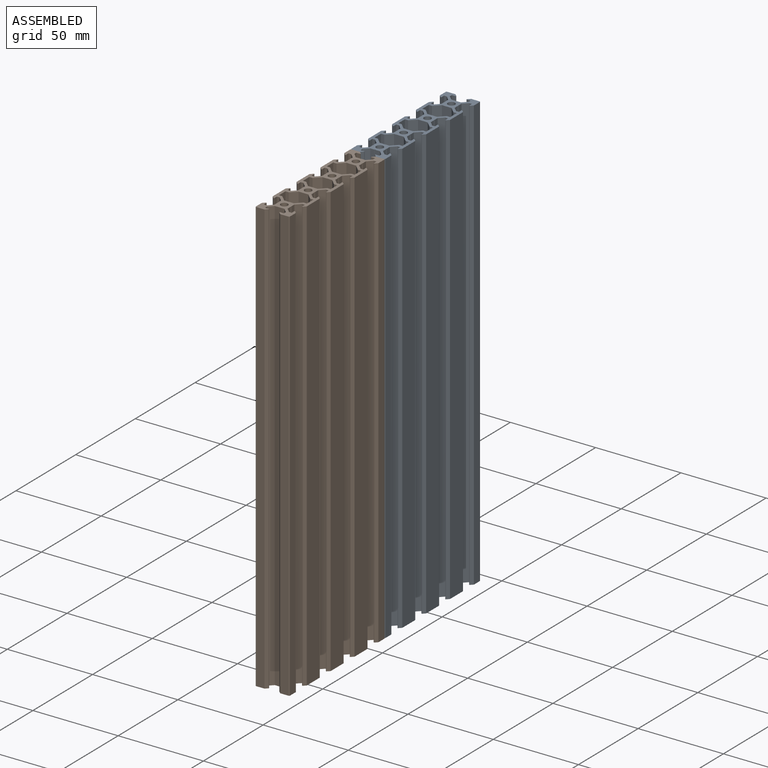
[diagram: assembled view]
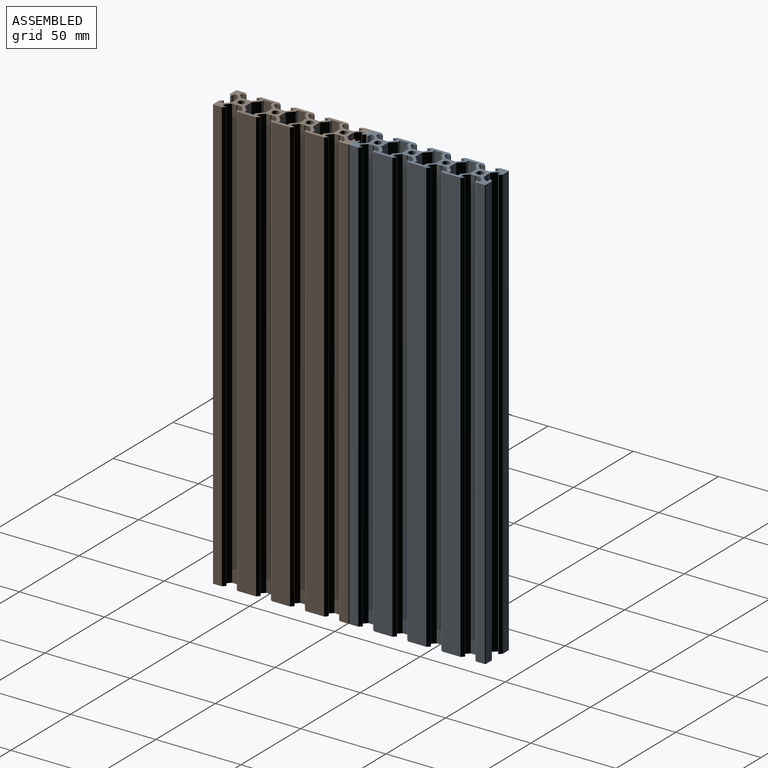
[diagram: assembled view, second angle]
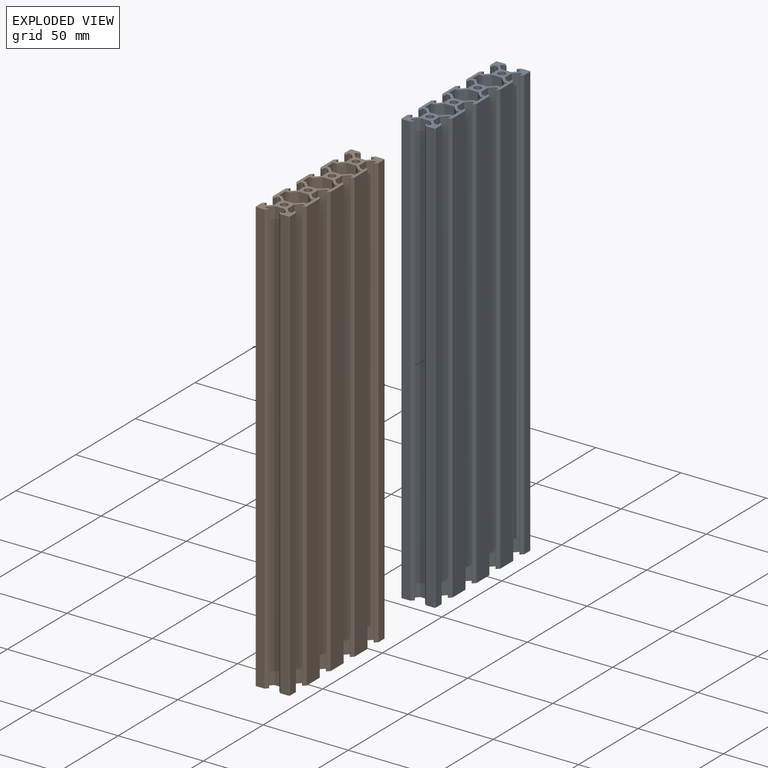
[diagram: exploded view]
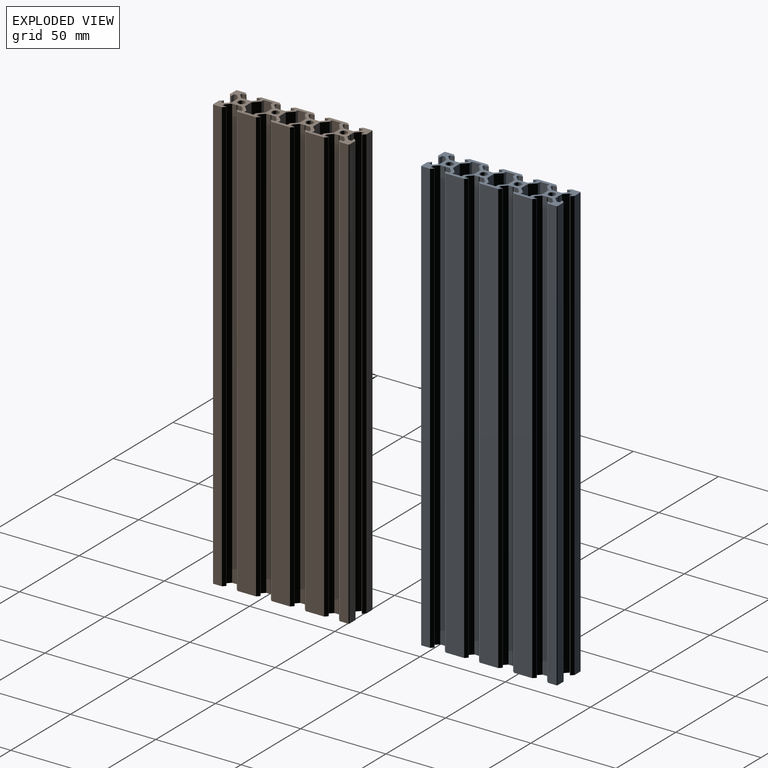
[diagram: exploded view, second angle]
ASSEMBLY  parts=2 mates=3
PART A: 200 faces, bbox 20x80x254 mm
  f0: cylinder r=2.1mm len=254mm, axis (0,0,-1), area 3351.5mm2, adj f198,f199
  f1: cylinder r=2.1mm len=254mm, axis (0,0,-1), area 3351.5mm2, adj f198,f199
  f2: cylinder r=2.1mm len=254mm, axis (0,0,-1), area 3351.5mm2, adj f198,f199
  f3: cylinder r=2.1mm len=254mm, axis (0,0,-1), area 3351.5mm2, adj f198,f199
  f4: plane 254x0.21mm, normal (0.71,0.71,0), area 75.4mm2, adj f5,f194,f198,f199
  f5: plane 254x0.21mm, normal (0.71,-0.71,0), area 75.4mm2, adj f4,f6,f198,f199
  f6: plane 254x2.63mm, normal (1,0,0), area 667.9mm2, adj f5,f7,f198,f199
  f7: plane 254x2.66mm, normal (0.71,-0.71,0), area 955.7mm2, adj f6,f8,f198,f199
  f8: plane 254x1.64mm, normal (0,-1,0), area 416.4mm2, adj f7,f9,f198,f199
  f9: plane 254x2.38mm, normal (-1,0,0), area 603.3mm2, adj f8,f10,f198,f199
  f10: plane 254x0.35mm, normal (0,-1,0), area 87.6mm2, adj f9,f11,f198,f199
  f11: plane 254x1.46mm, normal (0.71,-0.71,0), area 522.7mm2, adj f10,f12,f198,f199
  f12: plane 254x4.92mm, normal (1,0,0), area 1249.7mm2, adj f11,f13,f198,f199
  f13: cylinder r=0.5mm len=254mm, axis (0,0,-1), area 199.5mm2, adj f12,f14,f198,f199
  f14: plane 254x4.92mm, normal (0,1,0), area 1249.7mm2, adj f13,f15,f198,f199
  f15: plane 254x1.46mm, normal (-0.71,0.71,0), area 522.7mm2, adj f14,f16,f198,f199
  f16: plane 254x0.35mm, normal (-1,0,0), area 87.6mm2, adj f15,f17,f198,f199
  f17: plane 254x2.38mm, normal (0,-1,0), area 603.3mm2, adj f16,f18,f198,f199
  f18: plane 254x1.64mm, normal (-1,0,0), area 416.4mm2, adj f17,f19,f198,f199
  f19: plane 254x2.66mm, normal (-0.71,0.71,0), area 955.7mm2, adj f18,f20,f198,f199
  f20: plane 254x2.63mm, normal (0,1,0), area 667.9mm2, adj f19,f21,f198,f199
  f21: plane 254x0.21mm, normal (-0.71,0.71,0), area 75.4mm2, adj f20,f22,f198,f199
  f22: plane 254x0.21mm, normal (0.71,0.71,0), area 75.4mm2, adj f21,f23,f198,f199
  f23: plane 254x2.63mm, normal (0,1,0), area 667.9mm2, adj f22,f24,f198,f199
  f24: plane 254x2.66mm, normal (0.71,0.71,0), area 955.7mm2, adj f23,f25,f198,f199
  f25: plane 254x1.64mm, normal (1,0,0), area 416.4mm2, adj f24,f26,f198,f199
  f26: plane 254x2.38mm, normal (0,-1,0), area 603.3mm2, adj f25,f27,f198,f199
  f27: plane 254x0.35mm, normal (1,0,0), area 87.6mm2, adj f26,f28,f198,f199
  f28: plane 254x1.46mm, normal (0.71,0.71,0), area 522.7mm2, adj f27,f29,f198,f199
  f29: plane 254x4.92mm, normal (0,1,0), area 1249.7mm2, adj f28,f30,f198,f199
  f30: cylinder r=0.5mm len=254mm, axis (0,0,-1), area 199.5mm2, adj f29,f31,f198,f199
  f31: plane 254x4.92mm, normal (-1,0,0), area 1249.7mm2, adj f30,f32,f198,f199
  f32: plane 254x1.46mm, normal (-0.71,-0.71,0), area 522.7mm2, adj f31,f33,f198,f199
  f33: plane 254x0.35mm, normal (0,-1,0), area 87.6mm2, adj f32,f34,f198,f199
  f34: plane 254x2.38mm, normal (1,0,0), area 603.3mm2, adj f33,f35,f198,f199
  f35: plane 254x1.64mm, normal (0,-1,0), area 416.4mm2, adj f34,f36,f198,f199
  f36: plane 254x2.66mm, normal (-0.71,-0.71,0), area 955.7mm2, adj f35,f37,f198,f199
  f37: plane 254x2.63mm, normal (-1,0,0), area 667.9mm2, adj f36,f38,f198,f199
  f38: plane 254x0.21mm, normal (-0.71,-0.71,0), area 75.4mm2, adj f37,f39,f198,f199
  f39: plane 254x0.21mm, normal (-0.71,0.71,0), area 75.4mm2, adj f38,f40,f198,f199
  f40: plane 254x2.63mm, normal (-1,0,0), area 667.9mm2, adj f39,f41,f198,f199
  f41: plane 254x2.66mm, normal (-0.71,0.71,0), area 955.7mm2, adj f40,f42,f198,f199
  f42: plane 254x1.64mm, normal (0,1,0), area 416.4mm2, adj f41,f43,f198,f199
  f43: plane 254x2.38mm, normal (1,0,0), area 603.3mm2, adj f42,f44,f198,f199
  f44: plane 254x0.35mm, normal (0,1,0), area 87.6mm2, adj f43,f45,f198,f199
  f45: plane 254x1.46mm, normal (-0.71,0.71,0), area 522.7mm2, adj f44,f46,f198,f199
  f46: plane 254x10.84mm, normal (-1,0,0), area 2753.4mm2, adj f45,f47,f198,f199
  f47: plane 254x1.46mm, normal (-0.71,-0.71,0), area 522.7mm2, adj f46,f48,f198,f199
  f48: plane 254x0.35mm, normal (0,-1,0), area 87.6mm2, adj f47,f49,f198,f199
  f49: plane 254x2.38mm, normal (1,0,0), area 603.3mm2, adj f48,f50,f198,f199
  f50: plane 254x1.64mm, normal (0,-1,0), area 416.4mm2, adj f49,f51,f198,f199
  f51: plane 254x2.66mm, normal (-0.71,-0.71,0), area 955.7mm2, adj f50,f52,f198,f199
  f52: plane 254x2.63mm, normal (-1,0,0), area 667.9mm2, adj f51,f53,f198,f199
  f53: plane 254x0.21mm, normal (-0.71,-0.71,0), area 75.4mm2, adj f52,f54,f198,f199
  f54: plane 254x0.21mm, normal (-0.71,0.71,0), area 75.4mm2, adj f53,f55,f198,f199
  f55: plane 254x2.63mm, normal (-1,0,0), area 667.9mm2, adj f54,f56,f198,f199
  f56: plane 254x2.66mm, normal (-0.71,0.71,0), area 955.7mm2, adj f55,f57,f198,f199
  f57: plane 254x1.64mm, normal (0,1,0), area 416.4mm2, adj f56,f58,f198,f199
  f58: plane 254x2.38mm, normal (1,0,0), area 603.3mm2, adj f57,f59,f198,f199
  f59: plane 254x0.35mm, normal (0,1,0), area 87.6mm2, adj f58,f60,f198,f199
  f60: plane 254x1.46mm, normal (-0.71,0.71,0), area 522.7mm2, adj f59,f61,f198,f199
  f61: plane 254x10.84mm, normal (-1,0,0), area 2753.4mm2, adj f60,f62,f198,f199
  f62: plane 254x1.46mm, normal (-0.71,-0.71,0), area 522.7mm2, adj f61,f63,f198,f199
  f63: plane 254x0.35mm, normal (0,-1,0), area 87.6mm2, adj f62,f64,f198,f199
  f64: plane 254x2.38mm, normal (1,0,0), area 603.3mm2, adj f63,f65,f198,f199
  f65: plane 254x1.64mm, normal (0,-1,0), area 416.4mm2, adj f64,f66,f198,f199
  f66: plane 254x2.66mm, normal (-0.71,-0.71,0), area 955.7mm2, adj f65,f67,f198,f199
  f67: plane 254x2.63mm, normal (-1,0,0), area 667.9mm2, adj f66,f68,f198,f199
  f68: plane 254x0.21mm, normal (-0.71,-0.71,0), area 75.4mm2, adj f67,f69,f198,f199
  f69: plane 254x0.21mm, normal (-0.71,0.71,0), area 75.4mm2, adj f68,f70,f198,f199
  f70: plane 254x2.63mm, normal (-1,0,0), area 667.9mm2, adj f69,f71,f198,f199
  f71: plane 254x2.66mm, normal (-0.71,0.71,0), area 955.7mm2, adj f70,f72,f198,f199
  f72: plane 254x1.64mm, normal (0,1,0), area 416.4mm2, adj f71,f73,f198,f199
  f73: plane 254x2.38mm, normal (1,0,0), area 603.3mm2, adj f72,f74,f198,f199
  f74: plane 254x0.35mm, normal (0,1,0), area 87.6mm2, adj f73,f75,f198,f199
  f75: plane 254x1.46mm, normal (-0.71,0.71,0), area 522.7mm2, adj f74,f76,f198,f199
  f76: plane 254x10.84mm, normal (-1,0,0), area 2753.4mm2, adj f75,f77,f198,f199
  f77: plane 254x1.46mm, normal (-0.71,-0.71,0), area 522.7mm2, adj f76,f78,f198,f199
  f78: plane 254x0.35mm, normal (0,-1,0), area 87.6mm2, adj f77,f79,f198,f199
  f79: plane 254x2.38mm, normal (1,0,0), area 603.3mm2, adj f78,f80,f198,f199
  f80: plane 254x1.64mm, normal (0,-1,0), area 416.4mm2, adj f79,f81,f198,f199
  f81: plane 254x2.66mm, normal (-0.71,-0.71,0), area 955.7mm2, adj f80,f82,f198,f199
  f82: plane 254x2.63mm, normal (-1,0,0), area 667.9mm2, adj f81,f83,f198,f199
  f83: plane 254x0.21mm, normal (-0.71,-0.71,0), area 75.4mm2, adj f82,f84,f198,f199
  f84: plane 254x0.21mm, normal (-0.71,0.71,0), area 75.4mm2, adj f83,f85,f198,f199
  f85: plane 254x2.63mm, normal (-1,0,0), area 667.9mm2, adj f84,f86,f198,f199
  f86: plane 254x2.66mm, normal (-0.71,0.71,0), area 955.7mm2, adj f85,f87,f198,f199
  f87: plane 254x1.64mm, normal (0,1,0), area 416.4mm2, adj f86,f88,f198,f199
  f88: plane 254x2.38mm, normal (1,0,0), area 603.3mm2, adj f87,f89,f198,f199
  f89: plane 254x0.35mm, normal (0,1,0), area 87.6mm2, adj f88,f90,f198,f199
  f90: plane 254x1.46mm, normal (-0.71,0.71,0), area 522.7mm2, adj f89,f91,f198,f199
  f91: plane 254x4.92mm, normal (-1,0,0), area 1249.7mm2, adj f90,f92,f198,f199
  f92: cylinder r=0.5mm len=254mm, axis (0,0,-1), area 199.5mm2, adj f91,f93,f198,f199
  f93: plane 254x4.92mm, normal (0,-1,0), area 1249.7mm2, adj f92,f94,f198,f199
  f94: plane 254x1.46mm, normal (0.71,-0.71,0), area 522.7mm2, adj f93,f95,f198,f199
  f95: plane 254x0.35mm, normal (1,0,0), area 87.6mm2, adj f94,f96,f198,f199
  f96: plane 254x2.38mm, normal (0,1,0), area 603.3mm2, adj f95,f97,f198,f199
  f97: plane 254x1.64mm, normal (1,0,0), area 416.4mm2, adj f96,f98,f198,f199
  f98: plane 254x2.66mm, normal (0.71,-0.71,0), area 955.7mm2, adj f97,f99,f198,f199
  f99: plane 254x2.63mm, normal (0,-1,0), area 667.9mm2, adj f98,f100,f198,f199
  f100: plane 254x0.21mm, normal (0.71,-0.71,0), area 75.4mm2, adj f99,f101,f198,f199
  f101: plane 254x0.21mm, normal (-0.71,-0.71,0), area 75.4mm2, adj f100,f102,f198,f199
  f102: plane 254x2.63mm, normal (0,-1,0), area 667.9mm2, adj f101,f103,f198,f199
  f103: plane 254x2.66mm, normal (-0.71,-0.71,0), area 955.7mm2, adj f102,f104,f198,f199
  f104: plane 254x1.64mm, normal (-1,0,0), area 416.4mm2, adj f103,f105,f198,f199
  f105: plane 254x2.38mm, normal (0,1,0), area 603.3mm2, adj f104,f106,f198,f199
  f106: plane 254x0.35mm, normal (-1,0,0), area 87.6mm2, adj f105,f107,f198,f199
  f107: plane 254x1.46mm, normal (-0.71,-0.71,0), area 522.7mm2, adj f106,f108,f198,f199
  f108: plane 254x4.92mm, normal (0,-1,0), area 1249.7mm2, adj f107,f109,f198,f199
  f109: cylinder r=0.5mm len=254mm, axis (0,0,-1), area 199.5mm2, adj f108,f110,f198,f199
  f110: plane 254x4.92mm, normal (1,0,0), area 1249.7mm2, adj f109,f111,f198,f199
  f111: plane 254x1.46mm, normal (0.71,0.71,0), area 522.7mm2, adj f110,f112,f198,f199
  f112: plane 254x0.35mm, normal (0,1,0), area 87.6mm2, adj f111,f113,f198,f199
  f113: plane 254x2.38mm, normal (-1,0,0), area 603.3mm2, adj f112,f114,f198,f199
  f114: plane 254x1.64mm, normal (0,1,0), area 416.4mm2, adj f113,f115,f198,f199
  f115: plane 254x2.66mm, normal (0.71,0.71,0), area 955.7mm2, adj f114,f116,f198,f199
  f116: plane 254x2.63mm, normal (1,0,0), area 667.9mm2, adj f115,f117,f198,f199
  f117: plane 254x0.21mm, normal (0.71,0.71,0), area 75.4mm2, adj f116,f118,f198,f199
  f118: plane 254x0.21mm, normal (0.71,-0.71,0), area 75.4mm2, adj f117,f119,f198,f199
  f119: plane 254x2.63mm, normal (1,0,0), area 667.9mm2, adj f118,f120,f198,f199
  f120: plane 254x2.66mm, normal (0.71,-0.71,0), area 955.7mm2, adj f119,f121,f198,f199
  f121: plane 254x1.64mm, normal (0,-1,0), area 416.4mm2, adj f120,f122,f198,f199
  f122: plane 254x2.38mm, normal (-1,0,0), area 603.3mm2, adj f121,f123,f198,f199
  f123: plane 254x0.35mm, normal (0,-1,0), area 87.6mm2, adj f122,f124,f198,f199
  f124: plane 254x1.46mm, normal (0.71,-0.71,0), area 522.7mm2, adj f123,f125,f198,f199
  f125: plane 254x10.84mm, normal (1,0,0), area 2753.4mm2, adj f124,f126,f198,f199
  f126: plane 254x1.46mm, normal (0.71,0.71,0), area 522.7mm2, adj f125,f127,f198,f199
  f127: plane 254x0.35mm, normal (0,1,0), area 87.6mm2, adj f126,f128,f198,f199
  f128: plane 254x2.38mm, normal (-1,0,0), area 603.3mm2, adj f127,f129,f198,f199
  f129: plane 254x1.64mm, normal (0,1,0), area 416.4mm2, adj f128,f130,f198,f199
  f130: plane 254x2.66mm, normal (0.71,0.71,0), area 955.7mm2, adj f129,f131,f198,f199
  f131: plane 254x2.63mm, normal (1,0,0), area 667.9mm2, adj f130,f132,f198,f199
  f132: plane 254x0.21mm, normal (0.71,0.71,0), area 75.4mm2, adj f131,f133,f198,f199
  f133: plane 254x0.21mm, normal (0.71,-0.71,0), area 75.4mm2, adj f132,f134,f198,f199
  f134: plane 254x2.63mm, normal (1,0,0), area 667.9mm2, adj f133,f135,f198,f199
  f135: plane 254x2.66mm, normal (0.71,-0.71,0), area 955.7mm2, adj f134,f136,f198,f199
  f136: plane 254x1.64mm, normal (0,-1,0), area 416.4mm2, adj f135,f137,f198,f199
  f137: plane 254x2.38mm, normal (-1,0,0), area 603.3mm2, adj f136,f138,f198,f199
  f138: plane 254x0.35mm, normal (0,-1,0), area 87.6mm2, adj f137,f139,f198,f199
  f139: plane 254x1.46mm, normal (0.71,-0.71,0), area 522.7mm2, adj f138,f140,f198,f199
  f140: plane 254x10.84mm, normal (1,0,0), area 2753.4mm2, adj f139,f141,f198,f199
  f141: plane 254x1.46mm, normal (0.71,0.71,0), area 522.7mm2, adj f140,f142,f198,f199
  f142: plane 254x0.35mm, normal (0,1,0), area 87.6mm2, adj f141,f143,f198,f199
  f143: plane 254x2.38mm, normal (-1,0,0), area 603.3mm2, adj f142,f144,f198,f199
  f144: plane 254x1.64mm, normal (0,1,0), area 416.4mm2, adj f143,f145,f198,f199
  f145: plane 254x2.66mm, normal (0.71,0.71,0), area 955.7mm2, adj f144,f146,f198,f199
  f146: plane 254x2.63mm, normal (1,0,0), area 667.9mm2, adj f145,f147,f198,f199
  f147: plane 254x0.21mm, normal (0.71,0.71,0), area 75.4mm2, adj f146,f148,f198,f199
  f148: plane 254x0.21mm, normal (0.71,-0.71,0), area 75.4mm2, adj f147,f149,f198,f199
  f149: plane 254x2.63mm, normal (1,0,0), area 667.9mm2, adj f148,f150,f198,f199
  f150: plane 254x2.66mm, normal (0.71,-0.71,0), area 955.7mm2, adj f149,f151,f198,f199
  f151: plane 254x1.64mm, normal (0,-1,0), area 416.4mm2, adj f150,f152,f198,f199
  f152: plane 254x2.38mm, normal (-1,0,0), area 603.3mm2, adj f151,f153,f198,f199
  f153: plane 254x0.35mm, normal (0,-1,0), area 87.6mm2, adj f152,f154,f198,f199
  f154: plane 254x1.46mm, normal (0.71,-0.71,0), area 522.7mm2, adj f153,f155,f198,f199
  f155: plane 254x10.84mm, normal (1,0,0), area 2753.4mm2, adj f154,f156,f198,f199
  f156: plane 254x1.46mm, normal (0.71,0.71,0), area 522.7mm2, adj f155,f157,f198,f199
  f157: plane 254x0.35mm, normal (0,1,0), area 87.6mm2, adj f156,f158,f198,f199
  f158: plane 254x2.38mm, normal (-1,0,0), area 603.3mm2, adj f157,f159,f198,f199
  f159: plane 254x1.64mm, normal (0,1,0), area 416.4mm2, adj f158,f160,f198,f199
  f160: plane 254x2.66mm, normal (0.71,0.71,0), area 955.7mm2, adj f159,f194,f198,f199
  f161: plane 254x1.96mm, normal (0,1,0), area 498mm2, adj f162,f195,f198,f199
  f162: plane 254x5.4mm, normal (1,0,0), area 1371.6mm2, adj f161,f163,f198,f199
  f163: plane 254x1.96mm, normal (0,-1,0), area 498mm2, adj f162,f164,f198,f199
  f164: plane 254x3.4mm, normal (0.71,-0.71,0), area 1221.3mm2, adj f163,f165,f198,f199
  f165: plane 254x5.68mm, normal (0,-1,0), area 1442.4mm2, adj f164,f166,f198,f199
  f166: plane 254x3.4mm, normal (-0.71,-0.71,0), area 1221.3mm2, adj f165,f167,f198,f199
  f167: plane 254x1.96mm, normal (0,-1,0), area 498mm2, adj f166,f168,f198,f199
  f168: plane 254x5.4mm, normal (-1,0,0), area 1371.6mm2, adj f167,f169,f198,f199
  f169: plane 254x1.96mm, normal (0,1,0), area 498mm2, adj f168,f170,f198,f199
  f170: plane 254x3.4mm, normal (-0.71,0.71,0), area 1221.3mm2, adj f169,f171,f198,f199
  f171: plane 254x5.68mm, normal (0,1,0), area 1442.4mm2, adj f170,f195,f198,f199
  f172: plane 254x1.96mm, normal (0,1,0), area 498mm2, adj f173,f196,f198,f199
  f173: plane 254x5.4mm, normal (1,0,0), area 1371.6mm2, adj f172,f174,f198,f199
  f174: plane 254x1.96mm, normal (0,-1,0), area 498mm2, adj f173,f175,f198,f199
  f175: plane 254x3.4mm, normal (0.71,-0.71,0), area 1221.3mm2, adj f174,f176,f198,f199
  f176: plane 254x5.68mm, normal (0,-1,0), area 1442.4mm2, adj f175,f177,f198,f199
  f177: plane 254x3.4mm, normal (-0.71,-0.71,0), area 1221.3mm2, adj f176,f178,f198,f199
  f178: plane 254x1.96mm, normal (0,-1,0), area 498mm2, adj f177,f179,f198,f199
  f179: plane 254x5.4mm, normal (-1,0,0), area 1371.6mm2, adj f178,f180,f198,f199
  f180: plane 254x1.96mm, normal (0,1,0), area 498mm2, adj f179,f181,f198,f199
  f181: plane 254x3.4mm, normal (-0.71,0.71,0), area 1221.3mm2, adj f180,f182,f198,f199
  f182: plane 254x5.68mm, normal (0,1,0), area 1442.4mm2, adj f181,f196,f198,f199
  f183: plane 254x1.96mm, normal (0,1,0), area 498mm2, adj f184,f197,f198,f199
  f184: plane 254x5.4mm, normal (1,0,0), area 1371.6mm2, adj f183,f185,f198,f199
  f185: plane 254x1.96mm, normal (0,-1,0), area 498mm2, adj f184,f186,f198,f199
  f186: plane 254x3.4mm, normal (0.71,-0.71,0), area 1221.3mm2, adj f185,f187,f198,f199
  f187: plane 254x5.68mm, normal (0,-1,0), area 1442.4mm2, adj f186,f188,f198,f199
  f188: plane 254x3.4mm, normal (-0.71,-0.71,0), area 1221.3mm2, adj f187,f189,f198,f199
  f189: plane 254x1.96mm, normal (0,-1,0), area 498mm2, adj f188,f190,f198,f199
  f190: plane 254x5.4mm, normal (-1,0,0), area 1371.6mm2, adj f189,f191,f198,f199
  f191: plane 254x1.96mm, normal (0,1,0), area 498mm2, adj f190,f192,f198,f199
  f192: plane 254x3.4mm, normal (-0.71,0.71,0), area 1221.3mm2, adj f191,f193,f198,f199
  f193: plane 254x5.68mm, normal (0,1,0), area 1442.4mm2, adj f192,f197,f198,f199
  f194: plane 254x2.63mm, normal (1,0,0), area 667.9mm2, adj f4,f160,f198,f199
  f195: plane 254x3.4mm, normal (0.71,0.71,0), area 1221.3mm2, adj f161,f171,f198,f199
  f196: plane 254x3.4mm, normal (0.71,0.71,0), area 1221.3mm2, adj f172,f182,f198,f199
  f197: plane 254x3.4mm, normal (0.71,0.71,0), area 1221.3mm2, adj f183,f193,f198,f199
  f198: plane 80x20mm, normal (0,0,1), area 557.2mm2, adj f0,f1,f2,f3,f4,f5,f6,f7
  f199: plane 80x20mm, normal (0,0,-1), area 557.2mm2, adj f0,f1,f2,f3,f4,f5,f6,f7
PART B: same geometry as A
PLACE A t=(-12.95,-3.71,56.1)mm
PLACE B t=(-12.95,-83.71,56.1)mm
MATE planar A.f108 <-> B.f14  axis (0,-1,0) through (-5.91,-43.71,183.1)mm
MATE planar A.f125 <-> B.f155  axis (1,0,0) through (-2.95,-23.71,183.1)mm
MATE planar A.f198 <-> B.f198  axis (0,0,1) through (-12.95,-3.71,310.1)mm
